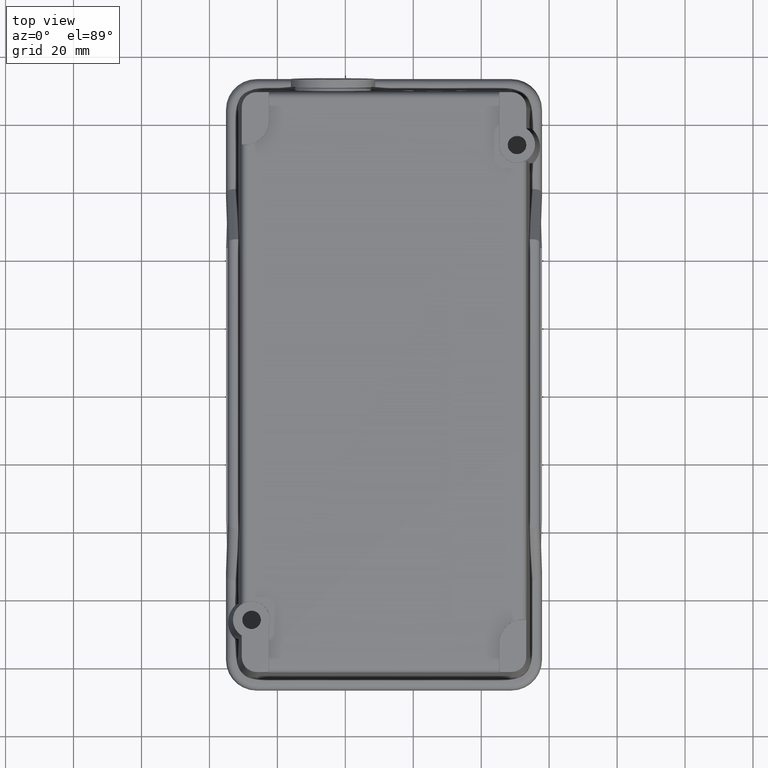
[diagram: clean part render]
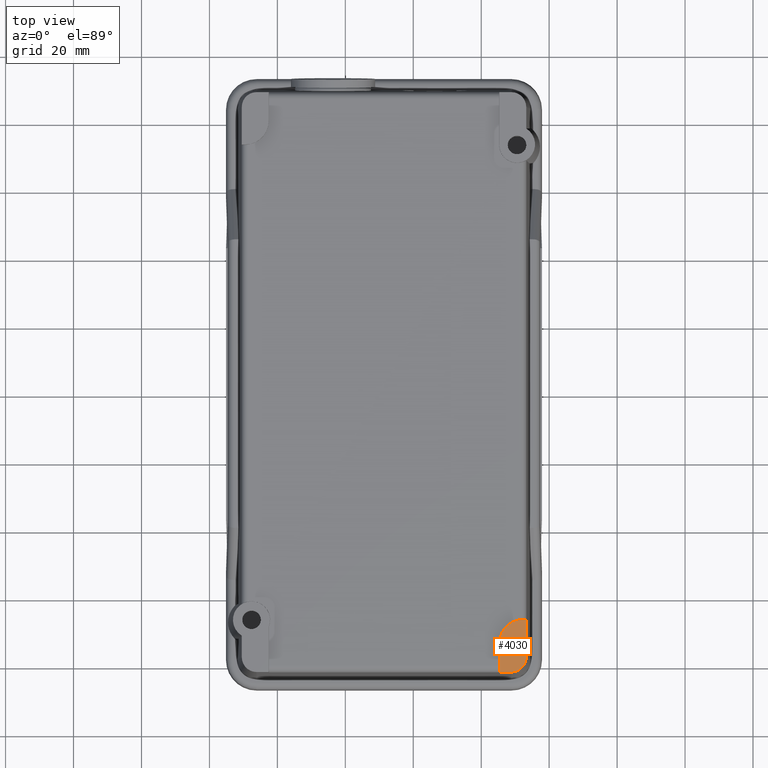
[diagram: same view with one face highlighted and labeled with its STEP entity id]
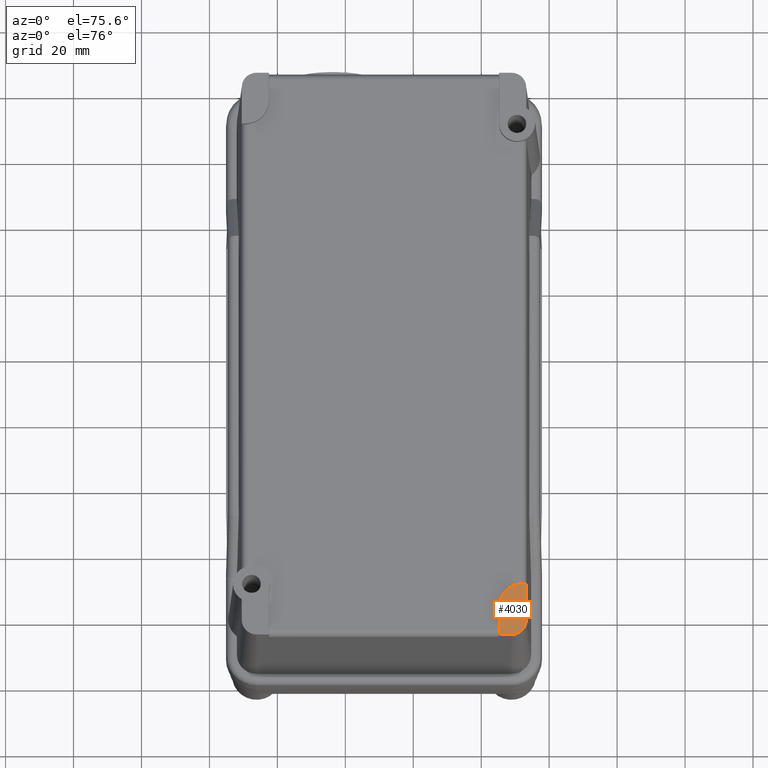
[diagram: same view with one face highlighted and labeled with its STEP entity id]
A machine part, top view. The second image highlights one B-rep face of the part: STEP entity #4030.
A second angle (auxiliary view) of the same face is appended — the face is thin or edge-on in the first view.
In plain terms, the highlighted planar face has unit normal (0, 0, 1).
Its self-contained STEP definition (entity closure, byte-faithful):
#2025=CARTESIAN_POINT('',(73.243815396772249,-6.828978363434865,47.0));
#2026=VERTEX_POINT('',#2025);
#2033=CARTESIAN_POINT('',(73.243815396772249,-17.900412990563549,47.0));
#2034=VERTEX_POINT('',#2033);
#2035=CARTESIAN_POINT('',(73.243815396772249,-6.828978363434865,47.0));
#2036=DIRECTION('',(0.0,-1.0,0.0));
#2037=VECTOR('',#2036,11.071434627128685);
#2038=LINE('',#2035,#2037);
#2039=EDGE_CURVE('',#2026,#2034,#2038,.T.);
#2108=CARTESIAN_POINT('',(65.313656935755745,-22.259136824451371,47.0));
#2109=VERTEX_POINT('',#2108);
#2140=CARTESIAN_POINT('',(68.885091562884426,-22.259136824451371,47.0));
#2141=VERTEX_POINT('',#2140);
#2148=CARTESIAN_POINT('',(68.885091562884426,-22.259136824451371,47.0));
#2149=DIRECTION('',(-1.0,0.0,0.0));
#2150=VECTOR('',#2149,3.571434627128681);
#2151=LINE('',#2148,#2150);
#2152=EDGE_CURVE('',#2141,#2109,#2151,.T.);
#3935=CARTESIAN_POINT('',(65.313656935755745,-13.794057593943121,47.0));
#3936=VERTEX_POINT('',#3935);
#3937=CARTESIAN_POINT('',(65.313656935755745,-22.259136824451371,47.0));
#3938=DIRECTION('',(0.0,1.0,0.0));
#3939=VECTOR('',#3938,8.465079230508250);
#3940=LINE('',#3937,#3939);
#3941=EDGE_CURVE('',#2109,#3936,#3940,.T.);
#3967=CARTESIAN_POINT('',(72.278736166263982,-6.828978363434864,47.0));
#3968=VERTEX_POINT('',#3967);
#3969=CARTESIAN_POINT('',(72.278736166263997,-13.794057593943116,47.0));
#3970=DIRECTION('',(0.0,0.0,-1.0));
#3971=DIRECTION('',(0.0,1.0,0.0));
#3972=AXIS2_PLACEMENT_3D('',#3969,#3970,#3971);
#3973=CIRCLE('',#3972,6.965079230508254);
#3974=EDGE_CURVE('',#3936,#3968,#3973,.T.);
#3999=CARTESIAN_POINT('',(72.278736166263982,-6.828978363434864,47.0));
#4000=DIRECTION('',(1.0,0.0,0.0));
#4001=VECTOR('',#4000,0.965079230508266);
#4002=LINE('',#3999,#4001);
#4003=EDGE_CURVE('',#3968,#2026,#4002,.T.);
#4011=CARTESIAN_POINT('',(69.449999491089073,-14.814940587488719,47.0));
#4012=DIRECTION('',(0.0,0.0,1.0));
#4013=DIRECTION('',(1.0,0.0,0.0));
#4014=AXIS2_PLACEMENT_3D('',#4011,#4012,#4013);
#4015=PLANE('',#4014);
#4016=CARTESIAN_POINT('',(68.885091562884426,-17.900412990563549,47.0));
#4017=DIRECTION('',(0.0,0.0,-1.0));
#4018=DIRECTION('',(0.0,-1.0,0.0));
#4019=AXIS2_PLACEMENT_3D('',#4016,#4017,#4018);
#4020=CIRCLE('',#4019,4.358723833887819);
#4021=EDGE_CURVE('',#2034,#2141,#4020,.T.);
#4022=ORIENTED_EDGE('',*,*,#4021,.F.);
#4023=ORIENTED_EDGE('',*,*,#2039,.F.);
#4024=ORIENTED_EDGE('',*,*,#4003,.F.);
#4025=ORIENTED_EDGE('',*,*,#3974,.F.);
#4026=ORIENTED_EDGE('',*,*,#3941,.F.);
#4027=ORIENTED_EDGE('',*,*,#2152,.F.);
#4028=EDGE_LOOP('',(#4022,#4023,#4024,#4025,#4026,#4027));
#4029=FACE_OUTER_BOUND('',#4028,.T.);
#4030=ADVANCED_FACE('',(#4029),#4015,.T.);